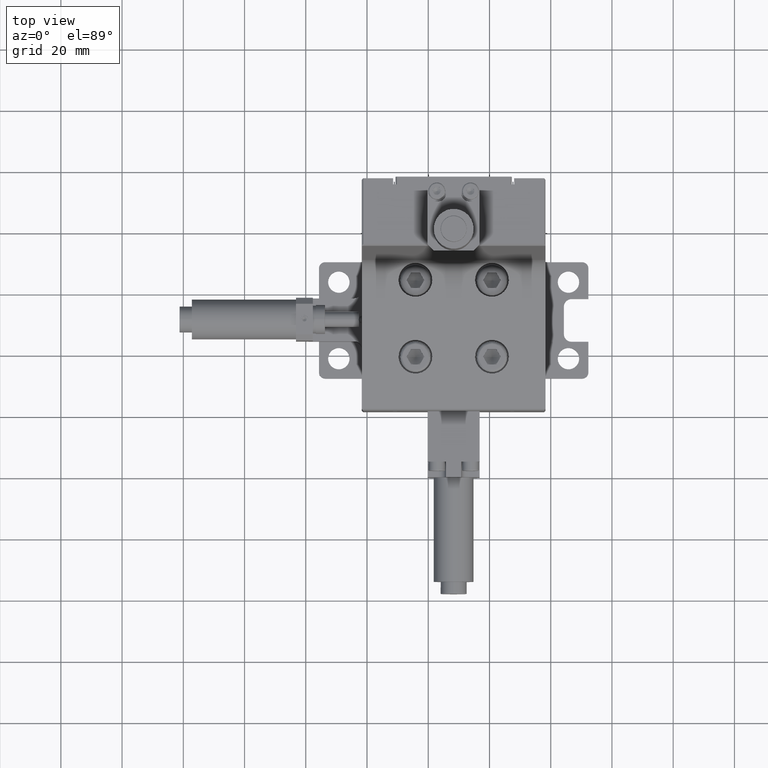
[diagram: clean part render]
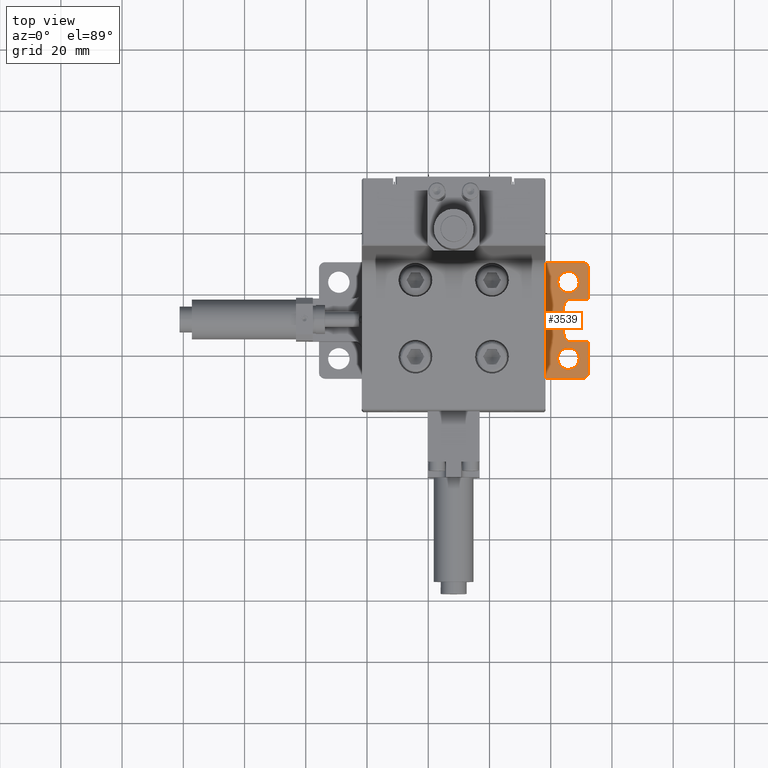
[diagram: same view with one face highlighted and labeled with its STEP entity id]
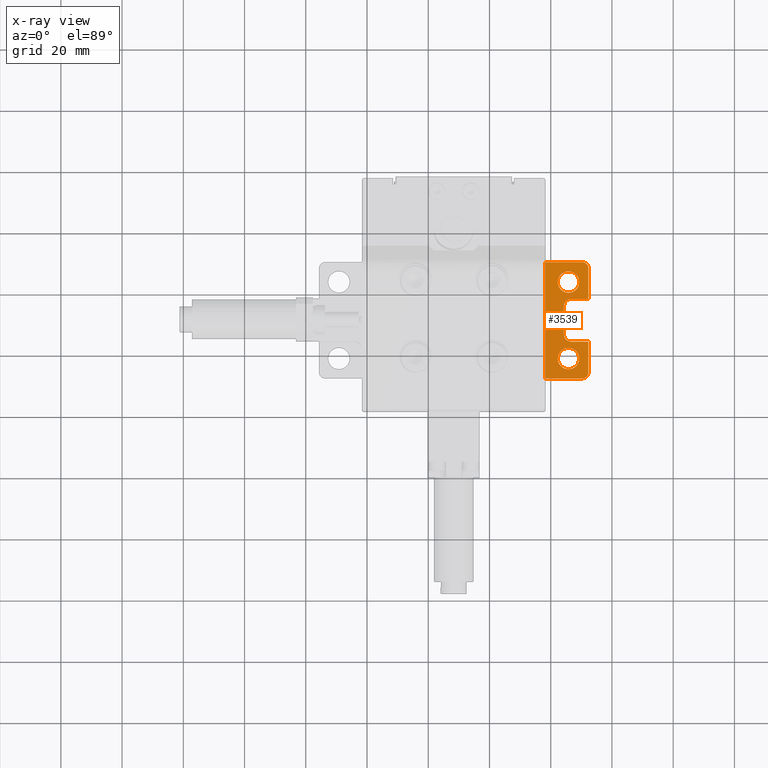
[diagram: x-ray of the same camera — body ghosted, the highlighted face saturated]
A machine part, top view. The second image highlights one B-rep face of the part: STEP entity #3539.
The next image is the same camera in x-ray: the body ghosted, the highlighted face saturated — about 0% of this face is hidden behind the body in this view.
In plain terms, the highlighted planar face has unit normal (0, 0, -1).
Its self-contained STEP definition (entity closure, byte-faithful):
#343 = DIRECTION ( 'NONE',  ( -0.0000000000000000000, -1.000000000000000000, -0.0000000000000000000 ) ) ;
#874 = CARTESIAN_POINT ( 'NONE',  ( 32.29769560000000400, -68.38251310799999800, -0.1287139150000000100 ) ) ;
#1189 = LINE ( 'NONE', #30294, #29840 ) ;
#1376 = DIRECTION ( 'NONE',  ( 1.000000000000000000, 0.0000000000000000000, 0.0000000000000000000 ) ) ;
#1484 = CARTESIAN_POINT ( 'NONE',  ( 25.79769560000000100, -55.88251310800000500, -0.1287139150000001800 ) ) ;
#1947 = AXIS2_PLACEMENT_3D ( 'NONE', #31618, #15048, #34381 ) ;
#2131 = CIRCLE ( 'NONE', #25143, 3.500000000000003100 ) ;
#2150 = LINE ( 'NONE', #28323, #23423 ) ;
#2201 = ORIENTED_EDGE ( 'NONE', *, *, #23842, .F. ) ;
#2300 = CIRCLE ( 'NONE', #1947, 3.500000000000003100 ) ;
#2398 = CARTESIAN_POINT ( 'NONE',  ( 26.79769560000000100, -72.88251310799999800, -0.1287139150000001800 ) ) ;
#2571 = EDGE_CURVE ( 'NONE', #6864, #25288, #5207, .T. ) ;
#2574 = ORIENTED_EDGE ( 'NONE', *, *, #15107, .F. ) ;
#3539 = ADVANCED_FACE ( 'NONE', ( #11110, #32341, #24932 ), #9527, .F. ) ;
#4065 = DIRECTION ( 'NONE',  ( 0.0000000000000000000, 0.0000000000000000000, -1.000000000000000000 ) ) ;
#4193 = LINE ( 'NONE', #33684, #25428 ) ;
#4297 = DIRECTION ( 'NONE',  ( 1.000000000000000000, 0.0000000000000000000, 0.0000000000000000000 ) ) ;
#4532 = CARTESIAN_POINT ( 'NONE',  ( 18.29769559400000400, -87.38251310799999800, -0.1287139150000000100 ) ) ;
#4553 = ORIENTED_EDGE ( 'NONE', *, *, #5318, .F. ) ;
#5189 = DIRECTION ( 'NONE',  ( -1.000000000000000000, 0.0000000000000000000, 0.0000000000000000000 ) ) ;
#5207 = CIRCLE ( 'NONE', #27612, 2.499999999999998700 ) ;
#5318 = EDGE_CURVE ( 'NONE', #19577, #6864, #2150, .T. ) ;
#5359 = DIRECTION ( 'NONE',  ( 0.0000000000000000000, -0.0000000000000000000, 1.000000000000000000 ) ) ;
#5671 = EDGE_LOOP ( 'NONE', ( #6132, #11132 ) ) ;
#5893 = VERTEX_POINT ( 'NONE', #22114 ) ;
#6132 = ORIENTED_EDGE ( 'NONE', *, *, #35334, .F. ) ;
#6267 = DIRECTION ( 'NONE',  ( -1.000000000000000000, 0.0000000000000000000, 0.0000000000000000000 ) ) ;
#6741 = AXIS2_PLACEMENT_3D ( 'NONE', #16179, #35528, #18975 ) ;
#6864 = VERTEX_POINT ( 'NONE', #29985 ) ;
#7185 = CARTESIAN_POINT ( 'NONE',  ( 26.79769560000000100, -63.88251310799999800, -0.1287139150000001800 ) ) ;
#7297 = DIRECTION ( 'NONE',  ( -0.0000000000000000000, -0.0000000000000000000, 1.000000000000000000 ) ) ;
#7415 = DIRECTION ( 'NONE',  ( -1.000000000000000000, 0.0000000000000000000, 0.0000000000000000000 ) ) ;
#8083 = EDGE_CURVE ( 'NONE', #17615, #13072, #21071, .T. ) ;
#8374 = LINE ( 'NONE', #874, #29616 ) ;
#8655 = VERTEX_POINT ( 'NONE', #26363 ) ;
#9105 = CARTESIAN_POINT ( 'NONE',  ( 30.29769559999999700, -87.38251310799999800, -0.1287139149999990700 ) ) ;
#9274 = DIRECTION ( 'NONE',  ( -0.0000000000000000000, -1.000000000000000000, -0.0000000000000000000 ) ) ;
#9527 = PLANE ( 'NONE',  #32611 ) ;
#9795 = ORIENTED_EDGE ( 'NONE', *, *, #32676, .F. ) ;
#10021 = CARTESIAN_POINT ( 'NONE',  ( 30.29769560000000100, -49.38251310800000500, -0.1287139149999991800 ) ) ;
#10286 = LINE ( 'NONE', #30443, #31524 ) ;
#11022 = EDGE_CURVE ( 'NONE', #25288, #16281, #28143, .T. ) ;
#11110 = FACE_BOUND ( 'NONE', #20775, .T. ) ;
#11132 = ORIENTED_EDGE ( 'NONE', *, *, #16471, .F. ) ;
#11780 = VERTEX_POINT ( 'NONE', #18974 ) ;
#11929 = ORIENTED_EDGE ( 'NONE', *, *, #11022, .F. ) ;
#12455 = VERTEX_POINT ( 'NONE', #22485 ) ;
#12580 = CARTESIAN_POINT ( 'NONE',  ( 30.29769560000000100, -85.38251310800001200, -0.1287139149999984300 ) ) ;
#12872 = VERTEX_POINT ( 'NONE', #21512 ) ;
#13072 = VERTEX_POINT ( 'NONE', #9105 ) ;
#13736 = AXIS2_PLACEMENT_3D ( 'NONE', #2398, #21843, #5189 ) ;
#14051 = AXIS2_PLACEMENT_3D ( 'NONE', #34572, #18042, #1376 ) ;
#14220 = EDGE_CURVE ( 'NONE', #8655, #12872, #19309, .T. ) ;
#14319 = VECTOR ( 'NONE', #17957, 1000.000000000000000 ) ;
#14830 = ORIENTED_EDGE ( 'NONE', *, *, #32596, .F. ) ;
#15048 = DIRECTION ( 'NONE',  ( 0.0000000000000000000, -0.0000000000000000000, 1.000000000000000000 ) ) ;
#15107 = EDGE_CURVE ( 'NONE', #18654, #11780, #8374, .T. ) ;
#15363 = DIRECTION ( 'NONE',  ( -1.000000000000000000, 0.0000000000000000000, 0.0000000000000000000 ) ) ;
#15598 = CARTESIAN_POINT ( 'NONE',  ( 18.29769559400000000, -49.38251310800000500, -0.1287139150000000100 ) ) ;
#16179 = CARTESIAN_POINT ( 'NONE',  ( 30.29769560000000100, -51.38251310800000500, -0.1287139149999984300 ) ) ;
#16281 = VERTEX_POINT ( 'NONE', #27615 ) ;
#16471 = EDGE_CURVE ( 'NONE', #5893, #27436, #2300, .T. ) ;
#16787 = CARTESIAN_POINT ( 'NONE',  ( -11.70230440000000300, -87.38251310799999800, -0.1287139150000000100 ) ) ;
#16920 = VERTEX_POINT ( 'NONE', #15598 ) ;
#16990 = LINE ( 'NONE', #32019, #24367 ) ;
#17048 = VERTEX_POINT ( 'NONE', #35330 ) ;
#17427 = AXIS2_PLACEMENT_3D ( 'NONE', #12580, #31960, #15363 ) ;
#17490 = CIRCLE ( 'NONE', #17427, 1.999999999999998200 ) ;
#17615 = VERTEX_POINT ( 'NONE', #4532 ) ;
#17732 = CIRCLE ( 'NONE', #23056, 3.500000000000003100 ) ;
#17957 = DIRECTION ( 'NONE',  ( -0.0000000000000000000, -1.000000000000000000, -0.0000000000000000000 ) ) ;
#18042 = DIRECTION ( 'NONE',  ( 0.0000000000000000000, -0.0000000000000000000, 1.000000000000000000 ) ) ;
#18654 = VERTEX_POINT ( 'NONE', #24303 ) ;
#18974 = CARTESIAN_POINT ( 'NONE',  ( 32.29769560000000400, -85.38251310841022200, -0.1287139149999991800 ) ) ;
#18975 = DIRECTION ( 'NONE',  ( -1.000000000000000000, 0.0000000000000000000, 0.0000000000000000000 ) ) ;
#19309 = CIRCLE ( 'NONE', #14051, 3.500000000000003100 ) ;
#19577 = VERTEX_POINT ( 'NONE', #34383 ) ;
#19613 = DIRECTION ( 'NONE',  ( 1.000000000000000000, 0.0000000000000000000, 0.0000000000000000000 ) ) ;
#20099 = CARTESIAN_POINT ( 'NONE',  ( 24.29769560300000100, -63.88251310799999800, -0.1287139150000001800 ) ) ;
#20183 = VECTOR ( 'NONE', #19613, 1000.000000000000000 ) ;
#20378 = ORIENTED_EDGE ( 'NONE', *, *, #23365, .F. ) ;
#20693 = CARTESIAN_POINT ( 'NONE',  ( 32.29769560000000400, -87.38251310799999800, -0.1287139150000000100 ) ) ;
#20738 = EDGE_LOOP ( 'NONE', ( #29892, #29379, #2574, #31263, #2201, #11929, #29880, #4553, #9795, #20378, #22204, #14830 ) ) ;
#20775 = EDGE_LOOP ( 'NONE', ( #26436, #30999 ) ) ;
#20940 = DIRECTION ( 'NONE',  ( 0.0000000000000000000, -0.0000000000000000000, 1.000000000000000000 ) ) ;
#21071 = LINE ( 'NONE', #16787, #20183 ) ;
#21512 = CARTESIAN_POINT ( 'NONE',  ( 22.29769559999999700, -80.88251310799999800, -0.1287139150000001800 ) ) ;
#21843 = DIRECTION ( 'NONE',  ( -0.0000000000000000000, -0.0000000000000000000, 1.000000000000000000 ) ) ;
#21913 = CIRCLE ( 'NONE', #6741, 1.999999999999998200 ) ;
#22003 = CARTESIAN_POINT ( 'NONE',  ( 25.79769560000000100, -80.88251310799999800, -0.1287139150000001800 ) ) ;
#22114 = CARTESIAN_POINT ( 'NONE',  ( 22.29769559999999700, -55.88251310800000500, -0.1287139150000001800 ) ) ;
#22204 = ORIENTED_EDGE ( 'NONE', *, *, #34322, .T. ) ;
#22485 = CARTESIAN_POINT ( 'NONE',  ( 32.29769559999999700, -51.38251310841020800, -0.1287139149999991800 ) ) ;
#23056 = AXIS2_PLACEMENT_3D ( 'NONE', #1484, #20940, #4297 ) ;
#23365 = EDGE_CURVE ( 'NONE', #25567, #12455, #21913, .T. ) ;
#23423 = VECTOR ( 'NONE', #6267, 1000.000000000000000 ) ;
#23461 = DIRECTION ( 'NONE',  ( -1.000000000000000000, 0.0000000000000000000, 0.0000000000000000000 ) ) ;
#23842 = EDGE_CURVE ( 'NONE', #16281, #17048, #33085, .T. ) ;
#23876 = EDGE_CURVE ( 'NONE', #11780, #13072, #17490, .T. ) ;
#24303 = CARTESIAN_POINT ( 'NONE',  ( 32.29769560000000400, -75.38251310000001100, -0.1287139149999999800 ) ) ;
#24367 = VECTOR ( 'NONE', #34653, 1000.000000000000000 ) ;
#24770 = DIRECTION ( 'NONE',  ( 1.000000000000000000, 0.0000000000000000000, 0.0000000000000000000 ) ) ;
#24932 = FACE_OUTER_BOUND ( 'NONE', #20738, .T. ) ;
#25143 = AXIS2_PLACEMENT_3D ( 'NONE', #22003, #5359, #24770 ) ;
#25288 = VERTEX_POINT ( 'NONE', #20099 ) ;
#25428 = VECTOR ( 'NONE', #343, 1000.000000000000000 ) ;
#25567 = VERTEX_POINT ( 'NONE', #10021 ) ;
#25769 = EDGE_CURVE ( 'NONE', #12872, #8655, #2131, .T. ) ;
#26322 = EDGE_CURVE ( 'NONE', #17048, #18654, #1189, .T. ) ;
#26363 = CARTESIAN_POINT ( 'NONE',  ( 29.29769560000000400, -80.88251310799999800, -0.1287139150000001800 ) ) ;
#26436 = ORIENTED_EDGE ( 'NONE', *, *, #14220, .F. ) ;
#27436 = VERTEX_POINT ( 'NONE', #31253 ) ;
#27612 = AXIS2_PLACEMENT_3D ( 'NONE', #7185, #7297, #7415 ) ;
#27615 = CARTESIAN_POINT ( 'NONE',  ( 24.29769560300000100, -72.88251310822448700, -0.1287139150000001800 ) ) ;
#27869 = DIRECTION ( 'NONE',  ( 0.0000000000000000000, 1.000000000000000000, 0.0000000000000000000 ) ) ;
#28143 = LINE ( 'NONE', #34489, #14319 ) ;
#28323 = CARTESIAN_POINT ( 'NONE',  ( 25.29769560000000400, -61.38251312000000600, -0.1287139150000000100 ) ) ;
#29379 = ORIENTED_EDGE ( 'NONE', *, *, #23876, .F. ) ;
#29616 = VECTOR ( 'NONE', #9274, 1000.000000000000000 ) ;
#29840 = VECTOR ( 'NONE', #35846, 1000.000000000000000 ) ;
#29880 = ORIENTED_EDGE ( 'NONE', *, *, #2571, .F. ) ;
#29892 = ORIENTED_EDGE ( 'NONE', *, *, #8083, .T. ) ;
#29985 = CARTESIAN_POINT ( 'NONE',  ( 26.79769558826361500, -61.38251311400000500, -0.1287139150000001800 ) ) ;
#30294 = CARTESIAN_POINT ( 'NONE',  ( 25.29769560000000400, -75.38251309599999700, -0.1287139150000000100 ) ) ;
#30443 = CARTESIAN_POINT ( 'NONE',  ( 18.29769560000000100, -68.38251310799999800, -0.1287139150000000100 ) ) ;
#30999 = ORIENTED_EDGE ( 'NONE', *, *, #25769, .F. ) ;
#31253 = CARTESIAN_POINT ( 'NONE',  ( 29.29769560000000400, -55.88251310800000500, -0.1287139150000001800 ) ) ;
#31263 = ORIENTED_EDGE ( 'NONE', *, *, #26322, .F. ) ;
#31524 = VECTOR ( 'NONE', #27869, 1000.000000000000000 ) ;
#31618 = CARTESIAN_POINT ( 'NONE',  ( 25.79769560000000100, -55.88251310800000500, -0.1287139150000001800 ) ) ;
#31960 = DIRECTION ( 'NONE',  ( 0.0000000000000000000, 0.0000000000000000000, -1.000000000000000000 ) ) ;
#32019 = CARTESIAN_POINT ( 'NONE',  ( -11.70230440000000300, -49.38251310800000500, -0.1287139150000000100 ) ) ;
#32341 = FACE_BOUND ( 'NONE', #5671, .T. ) ;
#32596 = EDGE_CURVE ( 'NONE', #17615, #16920, #10286, .T. ) ;
#32611 = AXIS2_PLACEMENT_3D ( 'NONE', #20693, #4065, #23461 ) ;
#32676 = EDGE_CURVE ( 'NONE', #12455, #19577, #4193, .T. ) ;
#33085 = CIRCLE ( 'NONE', #13736, 2.499999999999998700 ) ;
#33684 = CARTESIAN_POINT ( 'NONE',  ( 32.29769560000000400, -68.38251310799999800, -0.1287139150000000100 ) ) ;
#34322 = EDGE_CURVE ( 'NONE', #25567, #16920, #16990, .T. ) ;
#34381 = DIRECTION ( 'NONE',  ( 1.000000000000000000, 0.0000000000000000000, 0.0000000000000000000 ) ) ;
#34383 = CARTESIAN_POINT ( 'NONE',  ( 32.29769560000000400, -61.38251311600000500, -0.1287139149999999800 ) ) ;
#34489 = CARTESIAN_POINT ( 'NONE',  ( 24.29769560600000100, -68.38251310799999800, -0.1287139150000000100 ) ) ;
#34572 = CARTESIAN_POINT ( 'NONE',  ( 25.79769560000000100, -80.88251310799999800, -0.1287139150000001800 ) ) ;
#34653 = DIRECTION ( 'NONE',  ( -1.000000000000000000, -0.0000000000000000000, -0.0000000000000000000 ) ) ;
#35330 = CARTESIAN_POINT ( 'NONE',  ( 26.79769558826361500, -75.38251310200000400, -0.1287139150000001800 ) ) ;
#35334 = EDGE_CURVE ( 'NONE', #27436, #5893, #17732, .T. ) ;
#35528 = DIRECTION ( 'NONE',  ( 0.0000000000000000000, 0.0000000000000000000, -1.000000000000000000 ) ) ;
#35846 = DIRECTION ( 'NONE',  ( 1.000000000000000000, -0.0000000000000000000, -0.0000000000000000000 ) ) ;